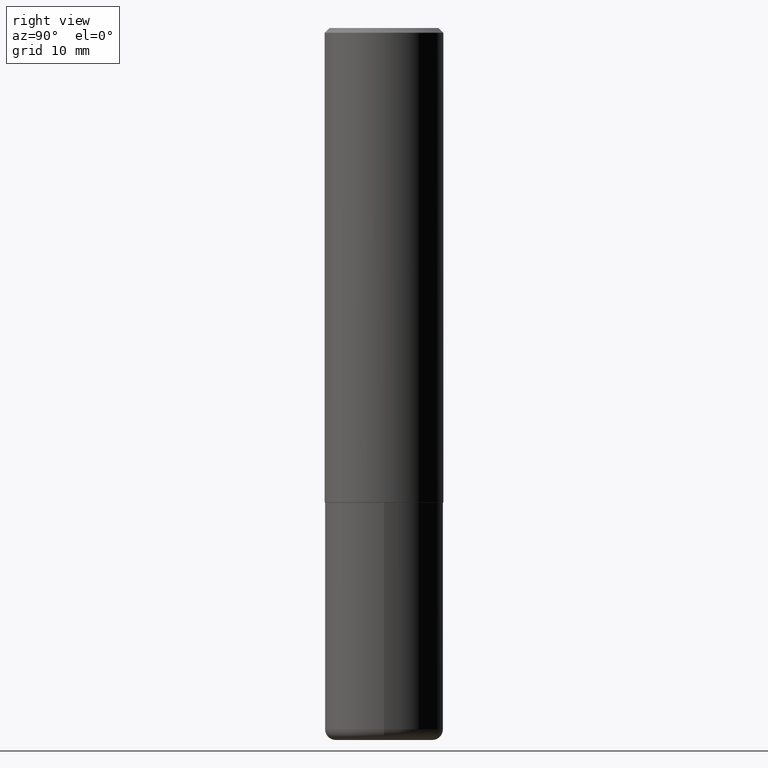
[diagram: clean part render]
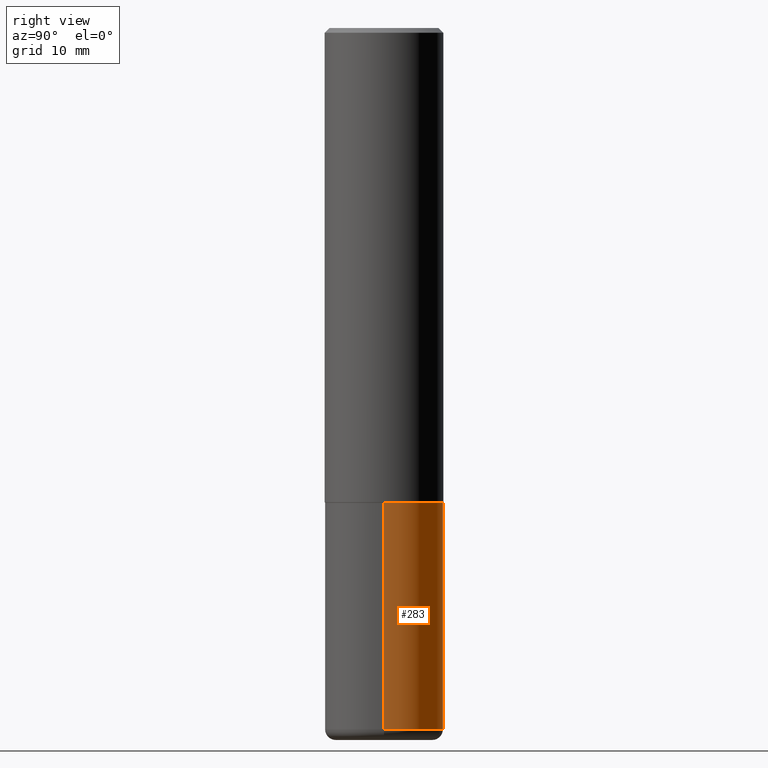
[diagram: same view with one face highlighted and labeled with its STEP entity id]
A machine part, right view. The second image highlights one B-rep face of the part: STEP entity #283.
In plain terms, the highlighted cylindrical surface (partial cylindrical patch) has radius 6.35 mm, axis along (-0, 0, 1).
Its self-contained STEP definition (entity closure, byte-faithful):
#1 = CARTESIAN_POINT ( 'NONE',  ( 4.890937612370273754E-29, -6.982962677686291954E-15, -2.000000000000000444 ) ) ;
#4 = ORIENTED_EDGE ( 'NONE', *, *, #392, .T. ) ;
#15 = CARTESIAN_POINT ( 'NONE',  ( 0.2500000000000000000, -8.728703347107858632E-15, -2.000000000000000444 ) ) ;
#31 = DIRECTION ( 'NONE',  ( 1.000000000000000000, -6.982962677686269077E-15, 0.000000000000000000 ) ) ;
#33 = DIRECTION ( 'NONE',  ( 1.000000000000000000, -6.982962677686266711E-15, 0.000000000000000000 ) ) ;
#61 = VERTEX_POINT ( 'NONE', #132 ) ;
#66 = ORIENTED_EDGE ( 'NONE', *, *, #380, .T. ) ;
#84 = CARTESIAN_POINT ( 'NONE',  ( 0.2500000000000000000, -1.745740669421566678E-15, 1.219044193948983948E-29 ) ) ;
#89 = DIRECTION ( 'NONE',  ( -2.445468806185136597E-29, 3.491481338843145583E-15, 1.000000000000000000 ) ) ;
#96 = CARTESIAN_POINT ( 'NONE',  ( -0.2500000000000000000, 1.776356839400250465E-15, -1.229733772563726445E-29 ) ) ;
#97 = ORIENTED_EDGE ( 'NONE', *, *, #146, .F. ) ;
#113 = CARTESIAN_POINT ( 'NONE',  ( 0.000000000000000000, 0.000000000000000000, 0.000000000000000000 ) ) ;
#126 = DIRECTION ( 'NONE',  ( -2.445468806185136877E-29, 3.491481338843145188E-15, 1.000000000000000000 ) ) ;
#132 = CARTESIAN_POINT ( 'NONE',  ( -0.2500000000000002220, -8.540970516881242679E-15, -2.955000000000000071 ) ) ;
#136 = VECTOR ( 'NONE', #341, 39.37007874015748143 ) ;
#143 = LINE ( 'NONE', #84, #136 ) ;
#146 = EDGE_CURVE ( 'NONE', #221, #147, #143, .T. ) ;
#147 = VERTEX_POINT ( 'NONE', #15 ) ;
#148 = FACE_OUTER_BOUND ( 'NONE', #198, .T. ) ;
#176 = CARTESIAN_POINT ( 'NONE',  ( -0.2500000000000000000, -6.873788177583642873E-15, -2.000000000000000444 ) ) ;
#186 = AXIS2_PLACEMENT_3D ( 'NONE', #1, #89, #33 ) ;
#189 = VERTEX_POINT ( 'NONE', #176 ) ;
#190 = CIRCLE ( 'NONE', #395, 0.2500000000000000555 ) ;
#198 = EDGE_LOOP ( 'NONE', ( #4, #66, #412, #97 ) ) ;
#203 = CIRCLE ( 'NONE', #186, 0.2500000000000000000 ) ;
#221 = VERTEX_POINT ( 'NONE', #301 ) ;
#236 = DIRECTION ( 'NONE',  ( -2.445468806185136597E-29, 3.491481338843145583E-15, 1.000000000000000000 ) ) ;
#265 = AXIS2_PLACEMENT_3D ( 'NONE', #113, #236, #379 ) ;
#269 = CYLINDRICAL_SURFACE ( 'NONE', #265, 0.2500000000000000000 ) ;
#283 = ADVANCED_FACE ( 'NONE', ( #148 ), #269, .T. ) ;
#285 = LINE ( 'NONE', #96, #377 ) ;
#301 = CARTESIAN_POINT ( 'NONE',  ( 0.2500000000000002220, -1.206306802570306455E-14, -2.955000000000000071 ) ) ;
#315 = CARTESIAN_POINT ( 'NONE',  ( 7.226360322277077836E-29, -1.031732735628149472E-14, -2.955000000000000071 ) ) ;
#341 = DIRECTION ( 'NONE',  ( -2.445468806185136877E-29, 3.491481338843145188E-15, 1.000000000000000000 ) ) ;
#377 = VECTOR ( 'NONE', #126, 39.37007874015748143 ) ;
#379 = DIRECTION ( 'NONE',  ( 1.000000000000000000, -6.982962677686266711E-15, 4.876176775795935793E-29 ) ) ;
#380 = EDGE_CURVE ( 'NONE', #61, #189, #285, .T. ) ;
#384 = DIRECTION ( 'NONE',  ( -2.445468806185136597E-29, 3.491481338843145583E-15, 1.000000000000000000 ) ) ;
#392 = EDGE_CURVE ( 'NONE', #221, #61, #190, .T. ) ;
#395 = AXIS2_PLACEMENT_3D ( 'NONE', #315, #384, #31 ) ;
#396 = EDGE_CURVE ( 'NONE', #147, #189, #203, .T. ) ;
#412 = ORIENTED_EDGE ( 'NONE', *, *, #396, .F. ) ;